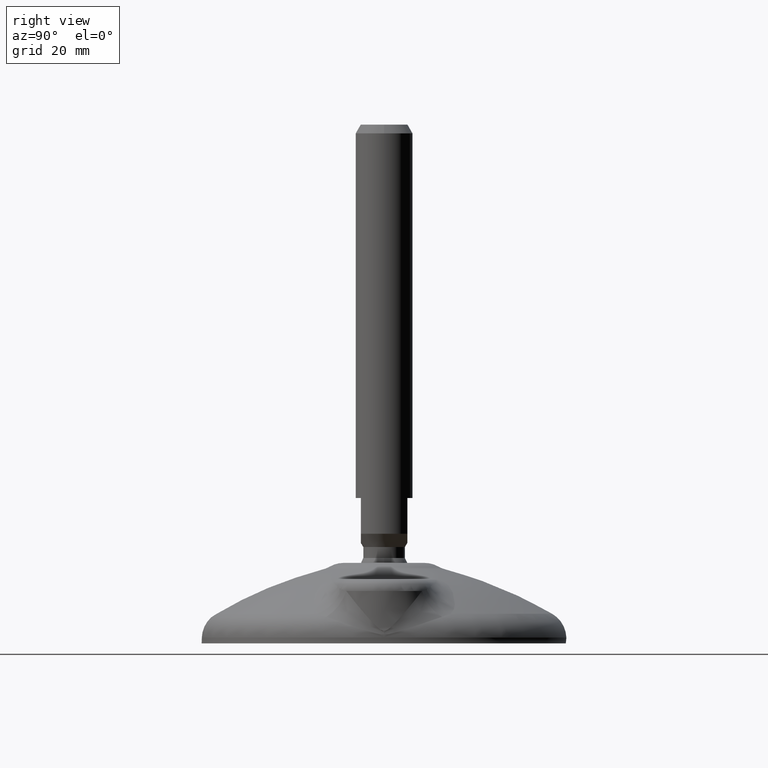
[diagram: clean part render]
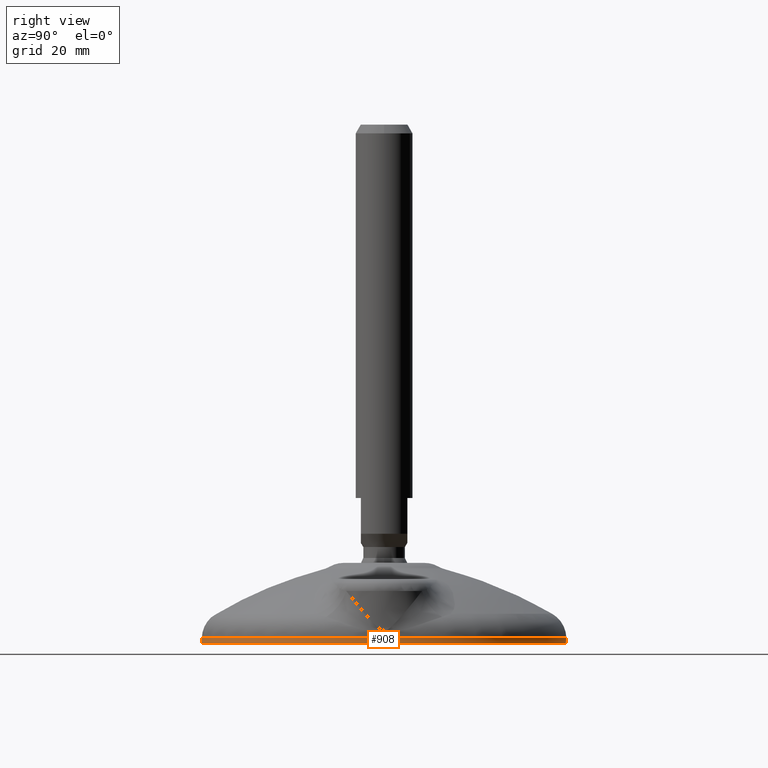
[diagram: same view with one face highlighted and labeled with its STEP entity id]
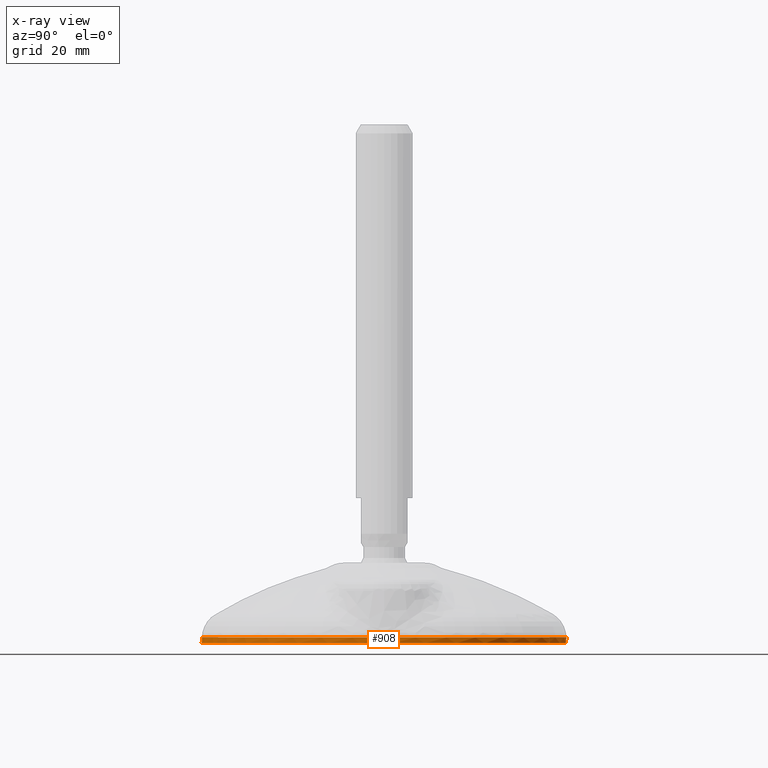
[diagram: x-ray of the same camera — body ghosted, the highlighted face saturated]
A machine part, right view. The second image highlights one B-rep face of the part: STEP entity #908.
The next image is the same camera in x-ray: the body ghosted, the highlighted face saturated — about 0% of this face is hidden behind the body in this view.
In plain terms, the highlighted conical surface has half-angle 2 deg.
Its self-contained STEP definition (entity closure, byte-faithful):
#46=CONICAL_SURFACE('',#1019,50.9491029525027,0.0349003854585776);
#98=LINE('',#4173,#120);
#120=VECTOR('',#1185,50.9491029525027);
#159=FACE_OUTER_BOUND('',#225,.T.);
#225=EDGE_LOOP('',(#638,#639,#640,#641,#642));
#278=CIRCLE('',#986,51.0059948985812);
#287=CIRCLE('',#1001,50.9491029525027);
#288=CIRCLE('',#1002,50.9491029525027);
#352=VERTEX_POINT('',#1368);
#369=VERTEX_POINT('',#2316);
#370=VERTEX_POINT('',#2318);
#433=EDGE_CURVE('',#352,#352,#278,.T.);
#454=EDGE_CURVE('',#369,#370,#287,.T.);
#455=EDGE_CURVE('',#370,#369,#288,.T.);
#491=EDGE_CURVE('',#352,#370,#98,.T.);
#638=ORIENTED_EDGE('',*,*,#433,.T.);
#639=ORIENTED_EDGE('',*,*,#491,.T.);
#640=ORIENTED_EDGE('',*,*,#454,.F.);
#641=ORIENTED_EDGE('',*,*,#455,.F.);
#642=ORIENTED_EDGE('',*,*,#491,.F.);
#908=ADVANCED_FACE('',(#159),#46,.T.);
#986=AXIS2_PLACEMENT_3D('',#1369,#1113,#1114);
#1001=AXIS2_PLACEMENT_3D('',#2319,#1145,#1146);
#1002=AXIS2_PLACEMENT_3D('',#2320,#1147,#1148);
#1019=AXIS2_PLACEMENT_3D('',#4172,#1183,#1184);
#1113=DIRECTION('center_axis',(0.,0.,1.));
#1114=DIRECTION('ref_axis',(0.,1.,-1.171453E-15));
#1145=DIRECTION('center_axis',(0.,1.171453E-15,1.));
#1146=DIRECTION('ref_axis',(0.,-1.,1.171453E-15));
#1147=DIRECTION('center_axis',(0.,1.171453E-15,1.));
#1148=DIRECTION('ref_axis',(0.,-1.,1.171453E-15));
#1183=DIRECTION('center_axis',(0.,-1.171453E-15,-1.));
#1184=DIRECTION('ref_axis',(0.,1.,-1.171453E-15));
#1185=DIRECTION('',(4.27319692553665E-18,0.03489330089714,0.999391043362157));
#1368=CARTESIAN_POINT('',(0.,-51.0059948985812,4.35762537165374E-14));
#1369=CARTESIAN_POINT('Origin',(0.,7.04756674839387E-23,4.35762537165374E-14));
#2316=CARTESIAN_POINT('',(-6.23946558502113E-15,50.9491029525027,1.62946181325611));
#2318=CARTESIAN_POINT('',(0.,-50.9491029525027,1.62946181325623));
#2319=CARTESIAN_POINT('Origin',(0.,3.817677E-15,1.62946181325617));
#2320=CARTESIAN_POINT('Origin',(0.,3.817677E-15,1.62946181325617));
#4172=CARTESIAN_POINT('Origin',(0.,1.908838E-15,1.62946181325617));
#4173=CARTESIAN_POINT('',(-6.23946558502113E-15,-50.9491029525027,1.62946181325623));